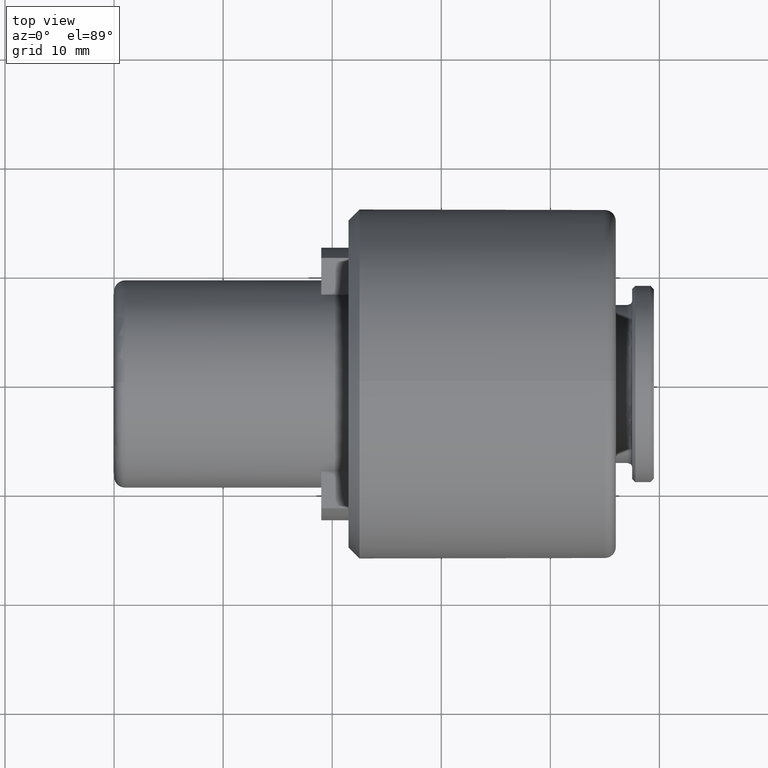
[diagram: clean part render]
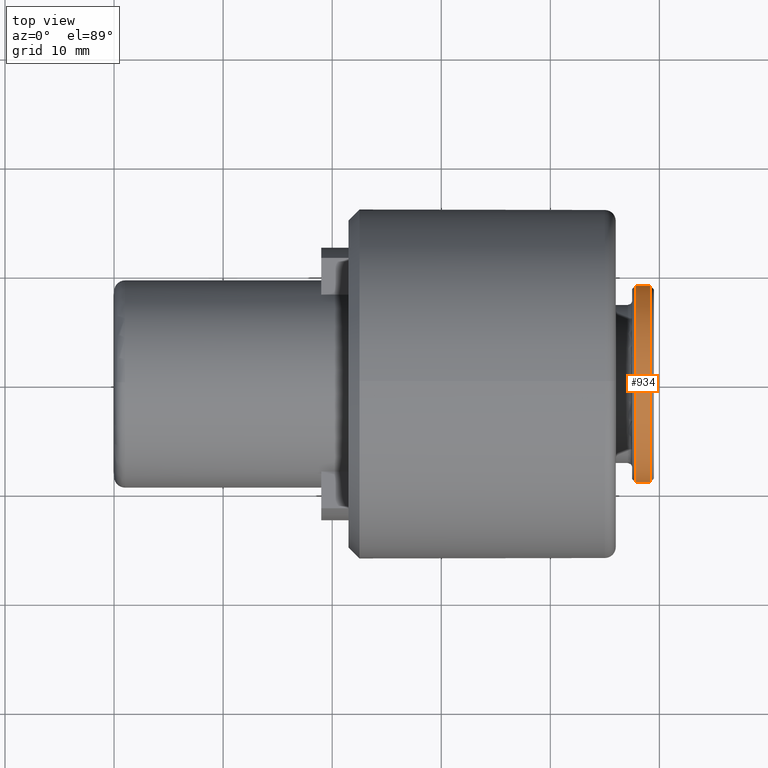
[diagram: same view with one face highlighted and labeled with its STEP entity id]
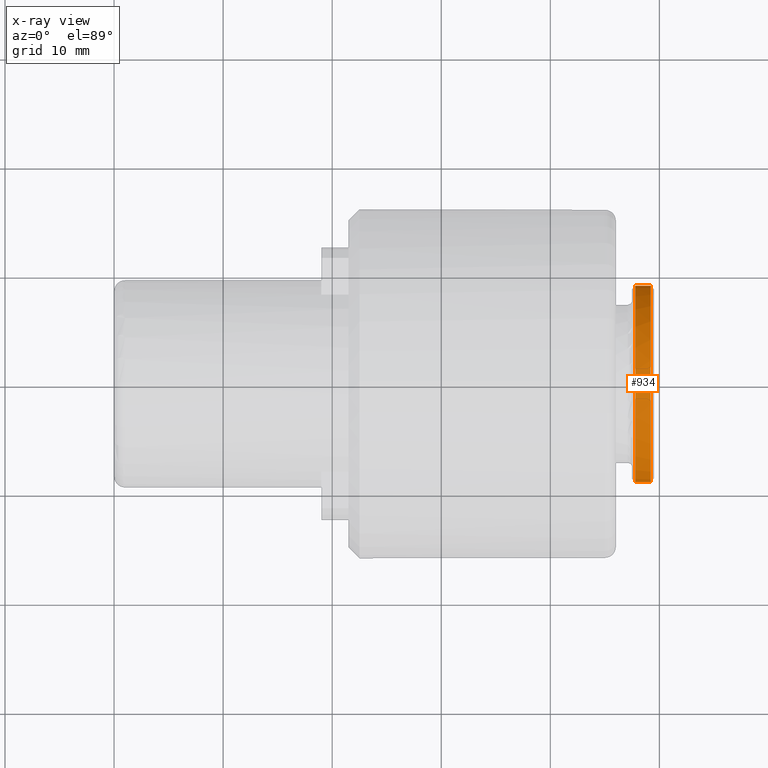
[diagram: x-ray of the same camera — body ghosted, the highlighted face saturated]
A machine part, top view. The second image highlights one B-rep face of the part: STEP entity #934.
The next image is the same camera in x-ray: the body ghosted, the highlighted face saturated — about 0% of this face is hidden behind the body in this view.
In plain terms, the highlighted cylindrical surface (partial cylindrical patch) has radius 9 mm, axis along (-1, -0, -0).
Its self-contained STEP definition (entity closure, byte-faithful):
#11 = LINE ( 'NONE', #1146, #1216 ) ;
#27 = FACE_OUTER_BOUND ( 'NONE', #620, .T. ) ;
#30 = AXIS2_PLACEMENT_3D ( 'NONE', #516, #492, #517 ) ;
#44 = ORIENTED_EDGE ( 'NONE', *, *, #773, .T. ) ;
#49 = EDGE_CURVE ( 'NONE', #648, #268, #419, .T. ) ;
#95 = CARTESIAN_POINT ( 'NONE',  ( 49.20000000000000300, 0.0000000000000000000, 9.000000000000001800 ) ) ;
#171 = CIRCLE ( 'NONE', #30, 9.000000000000001800 ) ;
#214 = ORIENTED_EDGE ( 'NONE', *, *, #437, .F. ) ;
#268 = VERTEX_POINT ( 'NONE', #945 ) ;
#332 = CARTESIAN_POINT ( 'NONE',  ( 49.20000000000000300, 9.000000000000001800, 1.102182119232617900E-015 ) ) ;
#333 = ORIENTED_EDGE ( 'NONE', *, *, #372, .F. ) ;
#346 = DIRECTION ( 'NONE',  ( 7.709882115452474200E-016, -1.000000000000000000, 0.0000000000000000000 ) ) ;
#362 = AXIS2_PLACEMENT_3D ( 'NONE', #425, #1056, #713 ) ;
#372 = EDGE_CURVE ( 'NONE', #413, #268, #11, .T. ) ;
#397 = DIRECTION ( 'NONE',  ( -1.000000000000000000, -3.854941057726237600E-016, -0.0000000000000000000 ) ) ;
#413 = VERTEX_POINT ( 'NONE', #674 ) ;
#419 = CIRCLE ( 'NONE', #362, 9.000000000000001800 ) ;
#425 = CARTESIAN_POINT ( 'NONE',  ( 47.79999999999995500, 0.0000000000000000000, 0.0000000000000000000 ) ) ;
#437 = EDGE_CURVE ( 'NONE', #609, #413, #171, .T. ) ;
#451 = CARTESIAN_POINT ( 'NONE',  ( 49.20000000000000300, 0.0000000000000000000, 0.0000000000000000000 ) ) ;
#475 = LINE ( 'NONE', #810, #850 ) ;
#476 = DIRECTION ( 'NONE',  ( 0.0000000000000000000, 0.0000000000000000000, 1.000000000000000000 ) ) ;
#492 = DIRECTION ( 'NONE',  ( 1.000000000000000000, -0.0000000000000000000, -0.0000000000000000000 ) ) ;
#516 = CARTESIAN_POINT ( 'NONE',  ( 49.20000000000000300, 0.0000000000000000000, 0.0000000000000000000 ) ) ;
#517 = DIRECTION ( 'NONE',  ( 0.0000000000000000000, 0.0000000000000000000, 1.000000000000000000 ) ) ;
#609 = VERTEX_POINT ( 'NONE', #95 ) ;
#620 = EDGE_LOOP ( 'NONE', ( #1177, #44, #952, #333, #214 ) ) ;
#648 = VERTEX_POINT ( 'NONE', #953 ) ;
#674 = CARTESIAN_POINT ( 'NONE',  ( 49.20000000000000300, -9.000000000000001800, 0.0000000000000000000 ) ) ;
#713 = DIRECTION ( 'NONE',  ( 4.625929269271484500E-015, 0.0000000000000000000, -1.000000000000000000 ) ) ;
#773 = EDGE_CURVE ( 'NONE', #809, #648, #475, .T. ) ;
#809 = VERTEX_POINT ( 'NONE', #332 ) ;
#810 = CARTESIAN_POINT ( 'NONE',  ( 49.19999999999999600, 9.000000000000001800, 1.102182119232617900E-015 ) ) ;
#850 = VECTOR ( 'NONE', #1107, 1000.000000000000000 ) ;
#853 = AXIS2_PLACEMENT_3D ( 'NONE', #451, #1020, #346 ) ;
#858 = DIRECTION ( 'NONE',  ( 1.000000000000000000, -0.0000000000000000000, -0.0000000000000000000 ) ) ;
#934 = ADVANCED_FACE ( 'NONE', ( #27 ), #1046, .T. ) ;
#945 = CARTESIAN_POINT ( 'NONE',  ( 47.79999999999995500, -9.000000000000001800, 0.0000000000000000000 ) ) ;
#952 = ORIENTED_EDGE ( 'NONE', *, *, #49, .T. ) ;
#953 = CARTESIAN_POINT ( 'NONE',  ( 47.79999999999995500, 9.000000000000001800, 1.102182119232617900E-015 ) ) ;
#1020 = DIRECTION ( 'NONE',  ( -1.000000000000000000, -3.854941057726237600E-016, -0.0000000000000000000 ) ) ;
#1046 = CYLINDRICAL_SURFACE ( 'NONE', #853, 9.000000000000001800 ) ;
#1056 = DIRECTION ( 'NONE',  ( 1.000000000000000000, 0.0000000000000000000, 0.0000000000000000000 ) ) ;
#1107 = DIRECTION ( 'NONE',  ( -1.000000000000000000, -3.854941057726237600E-016, -0.0000000000000000000 ) ) ;
#1146 = CARTESIAN_POINT ( 'NONE',  ( 49.20000000000001000, -9.000000000000001800, 0.0000000000000000000 ) ) ;
#1163 = CARTESIAN_POINT ( 'NONE',  ( 49.20000000000000300, 0.0000000000000000000, 0.0000000000000000000 ) ) ;
#1177 = ORIENTED_EDGE ( 'NONE', *, *, #1223, .F. ) ;
#1216 = VECTOR ( 'NONE', #397, 1000.000000000000000 ) ;
#1223 = EDGE_CURVE ( 'NONE', #809, #609, #1236, .T. ) ;
#1225 = AXIS2_PLACEMENT_3D ( 'NONE', #1163, #858, #476 ) ;
#1236 = CIRCLE ( 'NONE', #1225, 9.000000000000001800 ) ;